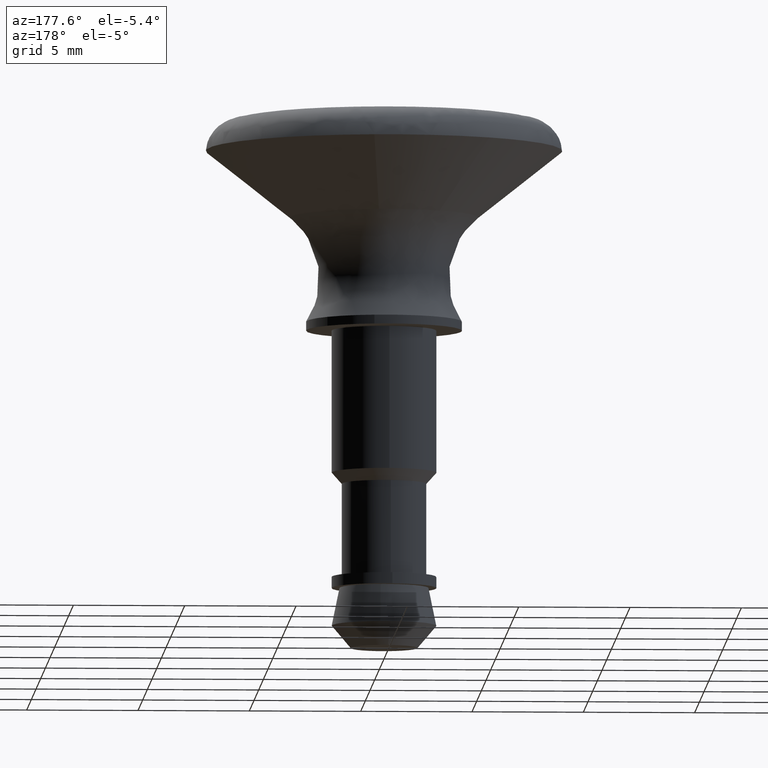
[diagram: clean part render]
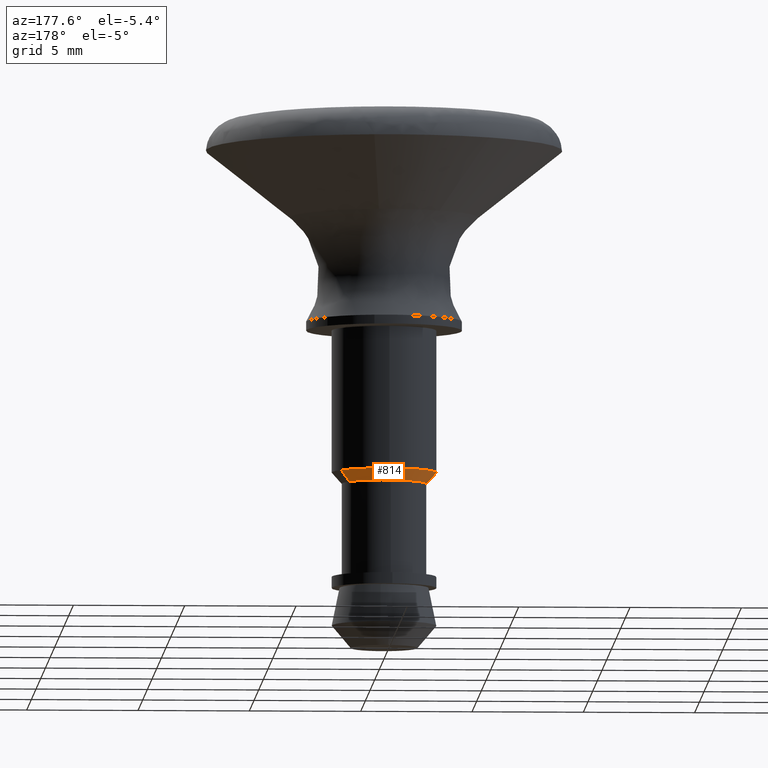
[diagram: same view with one face highlighted and labeled with its STEP entity id]
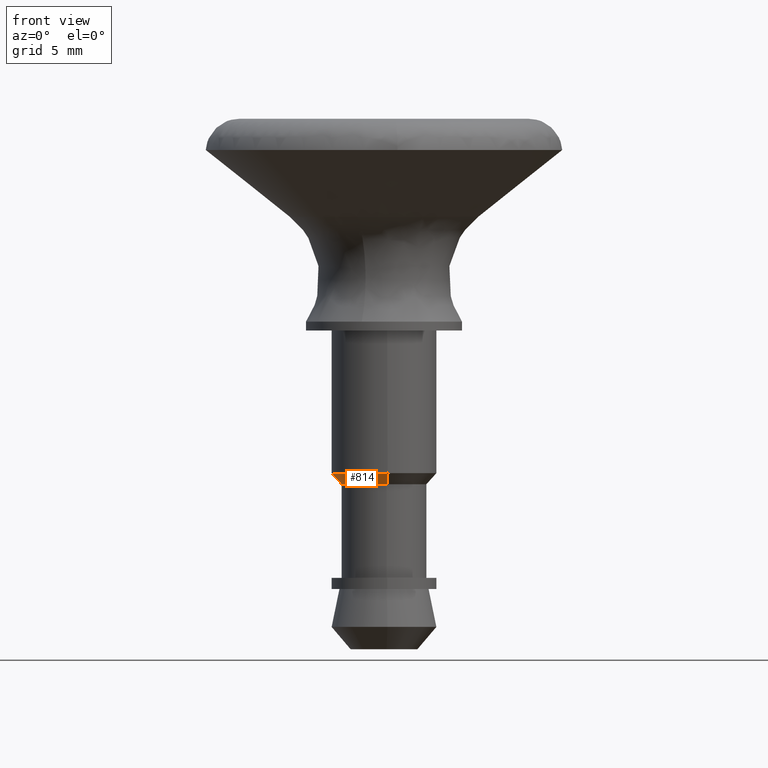
[diagram: same view with one face highlighted and labeled with its STEP entity id]
A machine part, auxiliary view. The second image highlights one B-rep face of the part: STEP entity #814.
A second angle (front view) of the same face is appended — the face is thin or edge-on in the first view.
In plain terms, the highlighted face is a freeform B-spline surface patch.
Its self-contained STEP definition (entity closure, byte-faithful):
#528=CARTESIAN_POINT('',(-0.143464067920206,2.345616776290574,-6.400000000000000));
#529=VERTEX_POINT('',#528);
#530=CARTESIAN_POINT('',(1.981144114831308,1.263949364598643,-6.400000000000000));
#531=VERTEX_POINT('',#530);
#532=CARTESIAN_POINT('',(-0.143464067920206,2.345616776290574,-6.400000000000000));
#533=CARTESIAN_POINT('',(-0.071798993765013,2.350000000000000,-6.400000000000001));
#534=CARTESIAN_POINT('',(0.0,2.350000000000000,-6.400000000000000));
#535=CARTESIAN_POINT('',(1.288255091634480,2.350000000000001,-6.400000000000000));
#536=CARTESIAN_POINT('',(1.981144114831309,1.263949364598642,-6.400000000000000));
#544=(BOUNDED_CURVE()B_SPLINE_CURVE(2,(#532,#533,#534,#535,#536),.UNSPECIFIED.,.F.,.U.)B_SPLINE_CURVE_WITH_KNOTS((3,2,3),(0.239332962240013,0.250000000000000,0.407950112627560),.UNSPECIFIED.)CURVE()GEOMETRIC_REPRESENTATION_ITEM()RATIONAL_B_SPLINE_CURVE((0.976072041669011,0.987502787901091,1.0,0.814949932402266,0.863729296954930))REPRESENTATION_ITEM(''));
#545=EDGE_CURVE('',#529,#531,#544,.T.);
#586=CARTESIAN_POINT('',(0.163921471478329,-2.344186255284249,-6.399999999993753));
#587=VERTEX_POINT('',#586);
#646=CARTESIAN_POINT('',(-2.350000000000000,0.0,-6.400000000000000));
#647=VERTEX_POINT('',#646);
#648=CARTESIAN_POINT('',(-2.350000000000000,0.0,-6.400000000000000));
#649=CARTESIAN_POINT('',(-2.350000000000001,2.210659257203282,-6.400000000000000));
#650=CARTESIAN_POINT('',(-0.143464067920206,2.345616776290574,-6.400000000000000));
#658=(BOUNDED_CURVE()B_SPLINE_CURVE(2,(#648,#649,#650),.UNSPECIFIED.,.F.,.U.)B_SPLINE_CURVE_WITH_KNOTS((3,3),(0.0,0.239332962240013),.UNSPECIFIED.)CURVE()GEOMETRIC_REPRESENTATION_ITEM()RATIONAL_B_SPLINE_CURVE((1.0,0.719603993285457,0.976072041669011))REPRESENTATION_ITEM(''));
#659=EDGE_CURVE('',#647,#529,#658,.T.);
#661=CARTESIAN_POINT('',(0.163921471478329,-2.344186255284249,-6.399999999993753));
#662=CARTESIAN_POINT('',(0.082057668093643,-2.349912190560494,-6.399999999993853));
#663=CARTESIAN_POINT('',(-0.000006031248859,-2.349913749123731,-6.399999999993962));
#664=CARTESIAN_POINT('',(-2.350002910316504,-2.349958380535350,-6.399999999997088));
#665=CARTESIAN_POINT('',(-2.350000000000000,0.0,-6.400000000000000));
#673=(BOUNDED_CURVE()B_SPLINE_CURVE(2,(#661,#662,#663,#664,#665),.UNSPECIFIED.,.F.,.U.)B_SPLINE_CURVE_WITH_KNOTS((3,2,3),(0.737829682993713,0.750000000000000,1.0),.UNSPECIFIED.)CURVE()GEOMETRIC_REPRESENTATION_ITEM()RATIONAL_B_SPLINE_CURVE((0.972871408702143,0.985741586712194,1.0,0.707106781186547,1.0))REPRESENTATION_ITEM(''));
#674=EDGE_CURVE('',#587,#647,#673,.T.);
#711=CARTESIAN_POINT('',(1.592291892292632,1.015865686121516,-6.912500000000112));
#712=CARTESIAN_POINT('',(0.982350009734754,1.971903012349741,-6.912500000000115));
#713=CARTESIAN_POINT('',(-0.148189617055968,1.882927614088443,-6.912500000000113));
#714=CARTESIAN_POINT('',(-2.031117231144412,1.734737997032475,-6.912500000000113));
#715=CARTESIAN_POINT('',(-1.882927614088443,-0.148189617055968,-6.912500000000113));
#716=CARTESIAN_POINT('',(-1.734737997032475,-2.031117231144412,-6.912500000000113));
#717=CARTESIAN_POINT('',(0.148189617055968,-1.882927614088443,-6.912500000000113));
#718=CARTESIAN_POINT('',(1.990865420394823,1.270151456560515,-6.387187499999995));
#719=CARTESIAN_POINT('',(1.228246325043784,2.465498655530425,-6.387187499999996));
#720=CARTESIAN_POINT('',(-0.185283606408050,2.354251437277480,-6.387187499999997));
#721=CARTESIAN_POINT('',(-2.539535043685531,2.168967830869429,-6.387187499999996));
#722=CARTESIAN_POINT('',(-2.354251437277480,-0.185283606408050,-6.387187499999997));
#723=CARTESIAN_POINT('',(-2.168967830869429,-2.539535043685531,-6.387187499999996));
#724=CARTESIAN_POINT('',(0.185283606408050,-2.354251437277480,-6.387187499999997));
#732=(BOUNDED_SURFACE()B_SPLINE_SURFACE(2,1,((#711,#718),(#712,#719),(#713,#720),(#714,#721),(#715,#722),(#716,#723),(#717,#724)),.UNSPECIFIED.,.F.,.F.,.U.)B_SPLINE_SURFACE_WITH_KNOTS((3,2,2,3),(2,2),(0.0,2.660644899072676,6.573357985944260,10.486071072815839),(0.0,1.0),.UNSPECIFIED.)GEOMETRIC_REPRESENTATION_ITEM()RATIONAL_B_SPLINE_SURFACE(((0.872532871172386,0.872532871172386),(0.800832611206852,0.800832611206852),(1.0,1.0),(0.707106781186548,0.707106781186548),(1.0,1.0),(0.707106781186548,0.707106781186548),(1.0,1.0)))REPRESENTATION_ITEM('')SURFACE());
#733=CARTESIAN_POINT('',(-0.224265045857208,1.886718100089853,-6.900000000000109));
#734=VERTEX_POINT('',#733);
#735=CARTESIAN_POINT('',(1.601776092834955,1.021916507560886,-6.899999999999215));
#736=VERTEX_POINT('',#735);
#737=CARTESIAN_POINT('',(-0.224265045857208,1.886718100089853,-6.900000000000109));
#738=CARTESIAN_POINT('',(-0.112525827348095,1.900000000000000,-6.900000000000110));
#739=CARTESIAN_POINT('',(0.0,1.900000000000000,-6.900000000000110));
#740=CARTESIAN_POINT('',(1.041567946408409,1.900000000000001,-6.900000000000111));
#741=CARTESIAN_POINT('',(1.601776092834955,1.021916507560886,-6.899999999999215));
#749=(BOUNDED_CURVE()B_SPLINE_CURVE(2,(#737,#738,#739,#740,#741),.UNSPECIFIED.,.F.,.U.)B_SPLINE_CURVE_WITH_KNOTS((3,2,3),(0.229562473513966,0.250000000000000,0.407950112625155),.UNSPECIFIED.)CURVE()GEOMETRIC_REPRESENTATION_ITEM()RATIONAL_B_SPLINE_CURVE((0.956026754184597,0.976055948331682,1.0,0.814949932405085,0.863729296953444))REPRESENTATION_ITEM(''));
#750=EDGE_CURVE('',#734,#736,#749,.T.);
#751=ORIENTED_EDGE('',*,*,#750,.F.);
#752=CARTESIAN_POINT('',(-1.900000000000000,0.0,-6.900000000000110));
#753=VERTEX_POINT('',#752);
#754=CARTESIAN_POINT('',(-1.900000000000000,0.0,-6.900000000000110));
#755=CARTESIAN_POINT('',(-1.900000000000000,1.687531599290726,-6.900000000000111));
#756=CARTESIAN_POINT('',(-0.224265045857208,1.886718100089853,-6.900000000000109));
#764=(BOUNDED_CURVE()B_SPLINE_CURVE(2,(#754,#755,#756),.UNSPECIFIED.,.F.,.U.)B_SPLINE_CURVE_WITH_KNOTS((3,3),(0.0,0.229562473513966),.UNSPECIFIED.)CURVE()GEOMETRIC_REPRESENTATION_ITEM()RATIONAL_B_SPLINE_CURVE((1.0,0.731050832854866,0.956026754184597))REPRESENTATION_ITEM(''));
#765=EDGE_CURVE('',#753,#734,#764,.T.);
#766=ORIENTED_EDGE('',*,*,#765,.F.);
#767=CARTESIAN_POINT('',(0.115992225151275,-1.896456116999403,-6.900000000000110));
#768=VERTEX_POINT('',#767);
#769=CARTESIAN_POINT('',(0.115992225151275,-1.896456116999403,-6.900000000000110));
#770=CARTESIAN_POINT('',(0.058050250302464,-1.900000000000000,-6.900000000000111));
#771=CARTESIAN_POINT('',(0.0,-1.900000000000000,-6.900000000000110));
#772=CARTESIAN_POINT('',(-1.900000000000000,-1.900000000000000,-6.900000000000111));
#773=CARTESIAN_POINT('',(-1.900000000000000,0.0,-6.900000000000110));
#781=(BOUNDED_CURVE()B_SPLINE_CURVE(2,(#769,#770,#771,#772,#773),.UNSPECIFIED.,.F.,.U.)B_SPLINE_CURVE_WITH_KNOTS((3,2,3),(0.739332962235591,0.750000000000000,1.0),.UNSPECIFIED.)CURVE()GEOMETRIC_REPRESENTATION_ITEM()RATIONAL_B_SPLINE_CURVE((0.976072041659534,0.987502787895910,1.0,0.707106781186547,1.0))REPRESENTATION_ITEM(''));
#782=EDGE_CURVE('',#768,#753,#781,.T.);
#783=ORIENTED_EDGE('',*,*,#782,.F.);
#784=CARTESIAN_POINT('',(0.149072281965298,-1.894142934096824,-6.899999999988627));
#785=VERTEX_POINT('',#784);
#786=CARTESIAN_POINT('',(0.149072281965298,-1.894142934096824,-6.899999999988627));
#787=CARTESIAN_POINT('',(0.132542347036974,-1.895443868180451,-6.900000000000111));
#788=CARTESIAN_POINT('',(0.115992225151275,-1.896456116999403,-6.900000000000110));
#796=(BOUNDED_CURVE()B_SPLINE_CURVE(2,(#786,#787,#788),.UNSPECIFIED.,.F.,.U.)B_SPLINE_CURVE_WITH_KNOTS((3,3),(0.736331300618000,0.739332962235590),.UNSPECIFIED.)CURVE()GEOMETRIC_REPRESENTATION_ITEM()RATIONAL_B_SPLINE_CURVE((0.969723356140999,0.972855475542871,0.976072041659532))REPRESENTATION_ITEM(''));
#797=EDGE_CURVE('',#785,#768,#796,.T.);
#798=ORIENTED_EDGE('',*,*,#797,.F.);
#799=CARTESIAN_POINT('',(0.149072281965298,-1.894142934096824,-6.899999999988627));
#800=CARTESIAN_POINT('',(0.163921471478329,-2.344186255284249,-6.399999999993753));
#801=QUASI_UNIFORM_CURVE('',1,(#799,#800),.UNSPECIFIED.,.F.,.U.);
#802=EDGE_CURVE('',#785,#587,#801,.T.);
#803=ORIENTED_EDGE('',*,*,#802,.T.);
#804=ORIENTED_EDGE('',*,*,#674,.T.);
#805=ORIENTED_EDGE('',*,*,#659,.T.);
#806=ORIENTED_EDGE('',*,*,#545,.T.);
#807=CARTESIAN_POINT('',(1.601776092834955,1.021916507560886,-6.899999999999215));
#808=CARTESIAN_POINT('',(1.981144114831308,1.263949364598643,-6.400000000000000));
#809=QUASI_UNIFORM_CURVE('',1,(#807,#808),.UNSPECIFIED.,.F.,.U.);
#810=EDGE_CURVE('',#736,#531,#809,.T.);
#811=ORIENTED_EDGE('',*,*,#810,.F.);
#812=EDGE_LOOP('',(#751,#766,#783,#798,#803,#804,#805,#806,#811));
#813=FACE_OUTER_BOUND('',#812,.T.);
#814=ADVANCED_FACE('',(#813),#732,.T.);